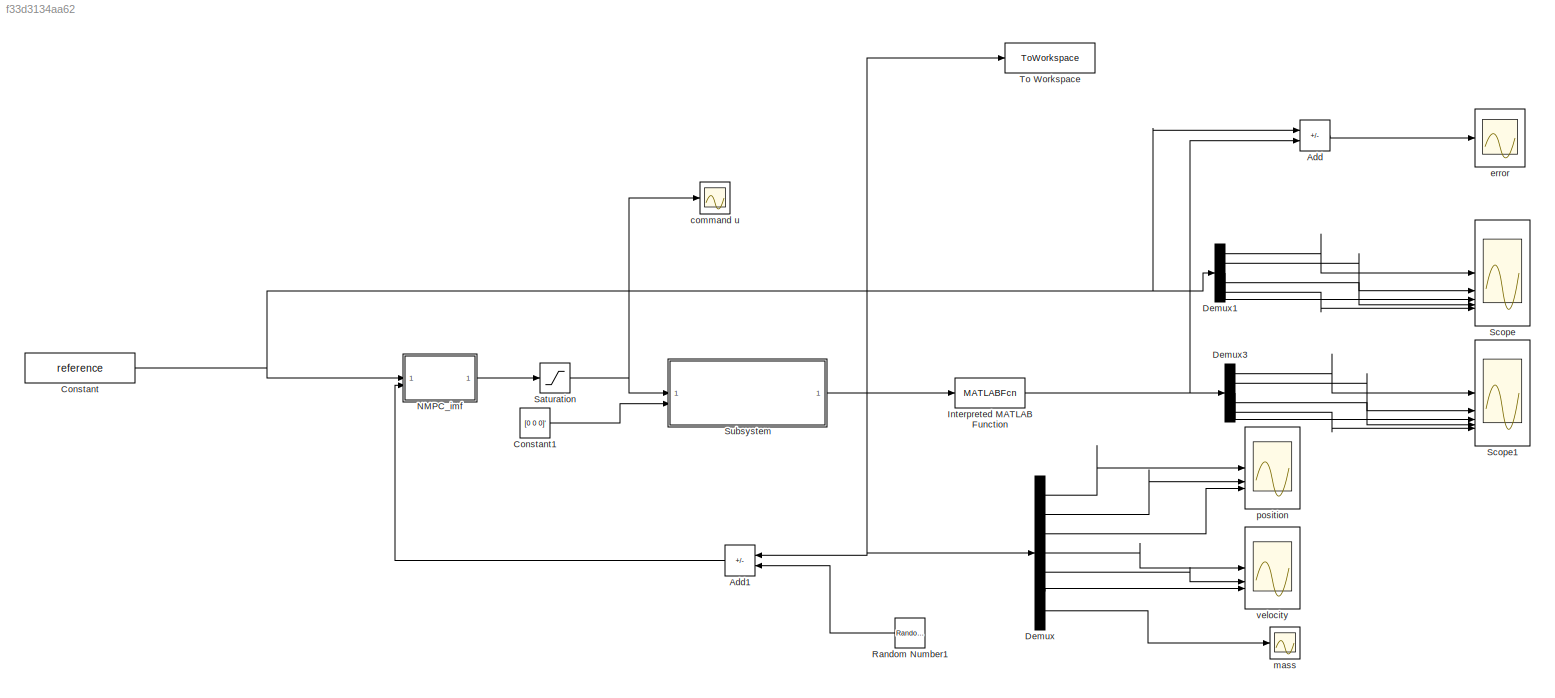
MODEL slx_f33d3134aa62
KIND model
CONFIG AbsTol = auto
CONFIG EnableMultiTasking = off
CONFIG FixedStep = auto
CONFIG MaxStep = auto
CONFIG MinStep = auto
CONFIG RelTol = 1e-3
CONFIG SampleTimeConstraint = Unconstrained
CONFIG SolverName = VariableStepAuto
CONFIG StartTime = 0.0
CONFIG StopTime = Tfin
BLOCK [Sum] Add
  IconShape = rectangular
  Inputs = +-
BLOCK [Sum] Add1
  IconShape = rectangular
  Inputs = +-
  NameLocation = top
BLOCK [Constant] Constant
  Value = reference
BLOCK [Constant] Constant1
  Value = [0 0 0]'
BLOCK [Demux] Demux
  Outputs = 7
BLOCK [Demux] Demux1
  Outputs = 5
BLOCK [Demux] Demux3
  Outputs = 5
BLOCK [MATLABFcn] Interpreted MATLAB Function
  MATLABFcn = rv2oe(u)
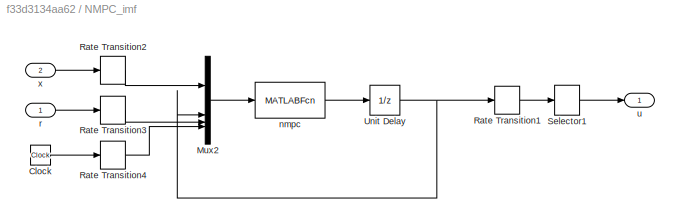
BLOCK [SubSystem] NMPC_imf
BLOCK [Clock] NMPC_imf/Clock
BLOCK [Mux] NMPC_imf/Mux2
  DisplayOption = bar
BLOCK [RateTransition] NMPC_imf/Rate Transition1
  OutPortSampleTime = K.Ts
BLOCK [RateTransition] NMPC_imf/Rate Transition2
  OutPortSampleTime = K.Ts
BLOCK [RateTransition] NMPC_imf/Rate Transition3
  OutPortSampleTime = K.Ts
BLOCK [RateTransition] NMPC_imf/Rate Transition4
  OutPortSampleTime = K.Ts
BLOCK [Selector] NMPC_imf/Selector1
  IndexOptions = Index vector (dialog)
  Indices = 1:K.nu
  InputPortWidth = K.nc
  OutputSizes = 1
BLOCK [UnitDelay] NMPC_imf/Unit Delay
  HasFrameUpgradeWarning = on
  InitialCondition = zeros(K.nc,1)
  NameLocation = top
  SampleTime = K.Ts
BLOCK [MATLABFcn] NMPC_imf/nmpc
  MATLABFcn = nmpc_st2(K,u(1:K.nx),u(K.nx+1:K.nx+K.nc),u(K.nx+K.nc+1:end-1),u(end))
  OutputDimensions = K.nc
BLOCK [Inport] NMPC_imf/r
BLOCK [Outport] NMPC_imf/u
  PortDimensions = K.nu
BLOCK [Inport] NMPC_imf/x
  Port = 2
BLOCK [RandomNumber] Random Number1
  Mean = d
  NameLocation = top
  SampleTime = 0.1
  Variance = dv
BLOCK [Saturate] Saturation
  LowerLimit = -132
  UpperLimit = 132
BLOCK [Scope] Scope
  Floating = off
  NumInputPorts = 5
  ScopeSpecificationString = Simulink.scopes.TimeScopeBlockCfg('CurrentConfiguration', extmgr.ConfigurationSet(extmgr.Configuration('Core','General UI',true),extmgr.Configuration('Core','Source UI',true),extmgr.Configuration('Sources','WiredSimulink',true,'DataLoggingVariableName','ScopeData2'),extmgr.Configuration('Visuals','Time Domain',true,'SerializedDisplays',{struct('MinYLimReal','7932.3','MaxYLimReal','9932.3','YLabelR...<+6995ch>
BLOCK [Scope] Scope1
  Floating = off
  NumInputPorts = 5
  ScopeSpecificationString = Simulink.scopes.TimeScopeBlockCfg('CurrentConfiguration', extmgr.ConfigurationSet(extmgr.Configuration('Core','General UI',true),extmgr.Configuration('Core','Source UI',true),extmgr.Configuration('Sources','WiredSimulink',true,'DataLoggingVariableName','ScopeData3'),extmgr.Configuration('Visuals','Time Domain',true,'SerializedDisplays',{struct('MinYLimReal','6390.09849','MaxYLimReal','11199.11357'...<+6857ch>
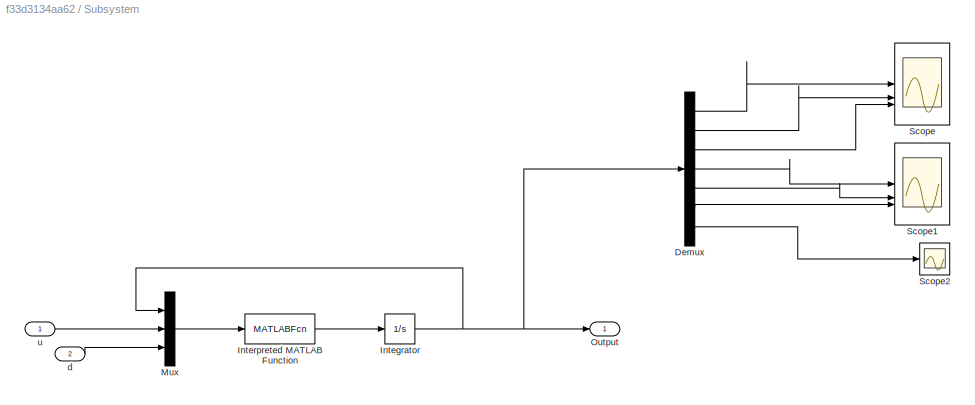
BLOCK [SubSystem] Subsystem
BLOCK [Demux] Subsystem/Demux
  Outputs = 7
BLOCK [Integrator] Subsystem/Integrator
  InitialCondition = x0
BLOCK [MATLABFcn] Subsystem/Interpreted MATLAB Function
  MATLABFcn = spacecraft_dynamics(0,u(1:7),u(8:10),u(11:13))
BLOCK [Mux] Subsystem/Mux
  DisplayOption = bar
  Inputs = 3
BLOCK [Outport] Subsystem/Output
BLOCK [Scope] Subsystem/Scope
  Floating = off
  NumInputPorts = 3
  ScopeSpecificationString = Simulink.scopes.TimeScopeBlockCfg('CurrentConfiguration', extmgr.ConfigurationSet(extmgr.Configuration('Core','General UI',true),extmgr.Configuration('Core','Source UI',true),extmgr.Configuration('Sources','WiredSimulink',true,'DataLoggingVariableName','ScopeData1'),extmgr.Configuration('Visuals','Time Domain',true,'SerializedDisplays',{struct('MinYLimReal','6301.93971','MaxYLimReal','6378.67337',...<+2764ch>
BLOCK [Scope] Subsystem/Scope1
  Floating = off
  NumInputPorts = 3
  ScopeSpecificationString = Simulink.scopes.TimeScopeBlockCfg('CurrentConfiguration', extmgr.ConfigurationSet(extmgr.Configuration('Core','General UI',true),extmgr.Configuration('Core','Source UI',true),extmgr.Configuration('Sources','WiredSimulink',true,'DataLoggingVariableName','ScopeData2'),extmgr.Configuration('Visuals','Time Domain',true,'SerializedDisplays',{struct('MinYLimReal','-0.23034','MaxYLimReal','0.54226','YLab...<+1417ch>
BLOCK [Scope] Subsystem/Scope2
  Floating = off
  NumInputPorts = 1
  ScopeSpecificationString = Simulink.scopes.TimeScopeBlockCfg('CurrentConfiguration', extmgr.ConfigurationSet(extmgr.Configuration('Core','General UI',true),extmgr.Configuration('Core','Source UI',true),extmgr.Configuration('Sources','WiredSimulink',true,'DataLoggingVariableName','ScopeData3'),extmgr.Configuration('Visuals','Time Domain',true,'SerializedDisplays',{struct('MinYLimReal','20000.00000','MaxYLimReal','40000.00000...<+1429ch>
BLOCK [Inport] Subsystem/d
  Port = 2
BLOCK [Inport] Subsystem/u
BLOCK [ToWorkspace] To Workspace
  FixptAsFi = on
  MaxDataPoints = inf
  SampleTime = -1
  SaveFormat = Timeseries
  VariableName = rv
BLOCK [Scope] command u
  Floating = off
  NumInputPorts = 1
  ScopeSpecificationString = Simulink.scopes.TimeScopeBlockCfg('CurrentConfiguration', extmgr.ConfigurationSet(extmgr.Configuration('Core','General UI',true),extmgr.Configuration('Core','Source UI',true),extmgr.Configuration('Sources','WiredSimulink',true,'DataLoggingVariableName','ScopeData10'),extmgr.Configuration('Visuals','Time Domain',true,'SerializedDisplays',{struct('MinYLimReal','-165.00000','MaxYLimReal','165.00000',...<+1449ch>
BLOCK [Scope] error
  Floating = off
  NumInputPorts = 1
  ScopeSpecificationString = Simulink.scopes.TimeScopeBlockCfg('CurrentConfiguration', extmgr.ConfigurationSet(extmgr.Configuration('Core','General UI',true),extmgr.Configuration('Core','Source UI',true),extmgr.Configuration('Sources','WiredSimulink',true,'DataLoggingVariableName','ScopeData1'),extmgr.Configuration('Visuals','Time Domain',true,'SerializedDisplays',{struct('MinYLimReal','-2266.81357','MaxYLimReal','2542.20151'...<+1453ch>
BLOCK [Scope] mass
  Floating = off
  NumInputPorts = 1
  ScopeSpecificationString = Simulink.scopes.TimeScopeBlockCfg('CurrentConfiguration', extmgr.ConfigurationSet(extmgr.Configuration('Core','General UI',true),extmgr.Configuration('Core','Source UI',true),extmgr.Configuration('Sources','WiredSimulink',true,'DataLoggingVariableName','ScopeData6'),extmgr.Configuration('Visuals','Time Domain',true,'SerializedDisplays',{struct('MinYLimReal','3247.93062','MaxYLimReal','10750.22993'...<+1447ch>
BLOCK [Scope] position
  Floating = off
  NumInputPorts = 3
  ScopeSpecificationString = Simulink.scopes.TimeScopeBlockCfg('CurrentConfiguration', extmgr.ConfigurationSet(extmgr.Configuration('Core','General UI',true),extmgr.Configuration('Core','Source UI',true),extmgr.Configuration('Sources','WiredSimulink',true,'DataLoggingVariableName','ScopeData4'),extmgr.Configuration('Visuals','Time Domain',true,'SerializedDisplays',{struct('MinYLimReal','-15861.21744','MaxYLimReal','16945.1088...<+1528ch>
BLOCK [Scope] velocity
  Floating = off
  NumInputPorts = 3
  ScopeSpecificationString = Simulink.scopes.TimeScopeBlockCfg('CurrentConfiguration', extmgr.ConfigurationSet(extmgr.Configuration('Core','General UI',true),extmgr.Configuration('Core','Source UI',true),extmgr.Configuration('Sources','WiredSimulink',true,'DataLoggingVariableName','ScopeData5'),extmgr.Configuration('Visuals','Time Domain',true,'SerializedDisplays',{struct('MinYLimReal','-6.27395','MaxYLimReal','9.91338','YLab...<+1448ch>
LINE Add1:1 -> NMPC_imf:2
LINE Add:1 -> error:1
LINE Constant1:1 -> Subsystem:2
NET Constant:1 -> Add:1, Demux1:1, NMPC_imf:1
LINE Demux1:1 -> Scope:1
LINE Demux1:2 -> Scope:2
LINE Demux1:3 -> Scope:3
LINE Demux1:4 -> Scope:4
LINE Demux1:5 -> Scope:5
LINE Demux3:1 -> Scope1:1
LINE Demux3:2 -> Scope1:2
LINE Demux3:3 -> Scope1:3
LINE Demux3:4 -> Scope1:4
LINE Demux3:5 -> Scope1:5
LINE Demux:1 -> position:1
LINE Demux:2 -> position:2
LINE Demux:3 -> position:3
LINE Demux:4 -> velocity:1
LINE Demux:5 -> velocity:2
LINE Demux:6 -> velocity:3
LINE Demux:7 -> mass:1
NET Interpreted MATLAB Function:1 -> Add:2, Demux3:1
LINE NMPC_imf/Clock:1 -> NMPC_imf/Rate Transition4:1
LINE NMPC_imf/Mux2:1 -> NMPC_imf/nmpc:1
LINE NMPC_imf/Rate Transition1:1 -> NMPC_imf/Selector1:1
LINE NMPC_imf/Rate Transition2:1 -> NMPC_imf/Mux2:1
LINE NMPC_imf/Rate Transition3:1 -> NMPC_imf/Mux2:3
LINE NMPC_imf/Rate Transition4:1 -> NMPC_imf/Mux2:4
LINE NMPC_imf/Selector1:1 -> NMPC_imf/u:1
NET NMPC_imf/Unit Delay:1 -> NMPC_imf/Mux2:2, NMPC_imf/Rate Transition1:1
LINE NMPC_imf/nmpc:1 -> NMPC_imf/Unit Delay:1
LINE NMPC_imf/r:1 -> NMPC_imf/Rate Transition3:1
LINE NMPC_imf/x:1 -> NMPC_imf/Rate Transition2:1
LINE NMPC_imf:1 -> Saturation:1
LINE Random Number1:1 -> Add1:2
NET Saturation:1 -> Subsystem:1, command u:1
LINE Subsystem/Demux:1 -> Subsystem/Scope:1
LINE Subsystem/Demux:2 -> Subsystem/Scope:2
LINE Subsystem/Demux:3 -> Subsystem/Scope:3
LINE Subsystem/Demux:4 -> Subsystem/Scope1:1
LINE Subsystem/Demux:5 -> Subsystem/Scope1:2
LINE Subsystem/Demux:6 -> Subsystem/Scope1:3
LINE Subsystem/Demux:7 -> Subsystem/Scope2:1
NET Subsystem/Integrator:1 -> Subsystem/Demux:1, Subsystem/Mux:1, Subsystem/Output:1
LINE Subsystem/Interpreted MATLAB Function:1 -> Subsystem/Integrator:1
LINE Subsystem/Mux:1 -> Subsystem/Interpreted MATLAB Function:1
LINE Subsystem/d:1 -> Subsystem/Mux:3
LINE Subsystem/u:1 -> Subsystem/Mux:2
NET Subsystem:1 -> Add1:1, Demux:1, Interpreted MATLAB Function:1, To Workspace:1
note: NET lines group one-source signal fan-out (src -> all destinations, sorted); 1:1 wires keep LINE
